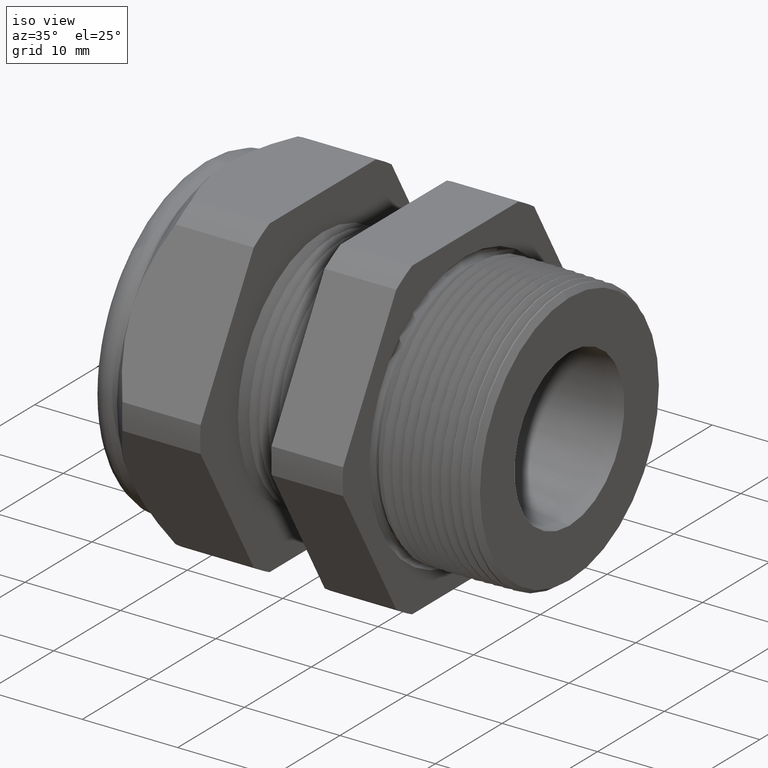
[diagram: clean part render]
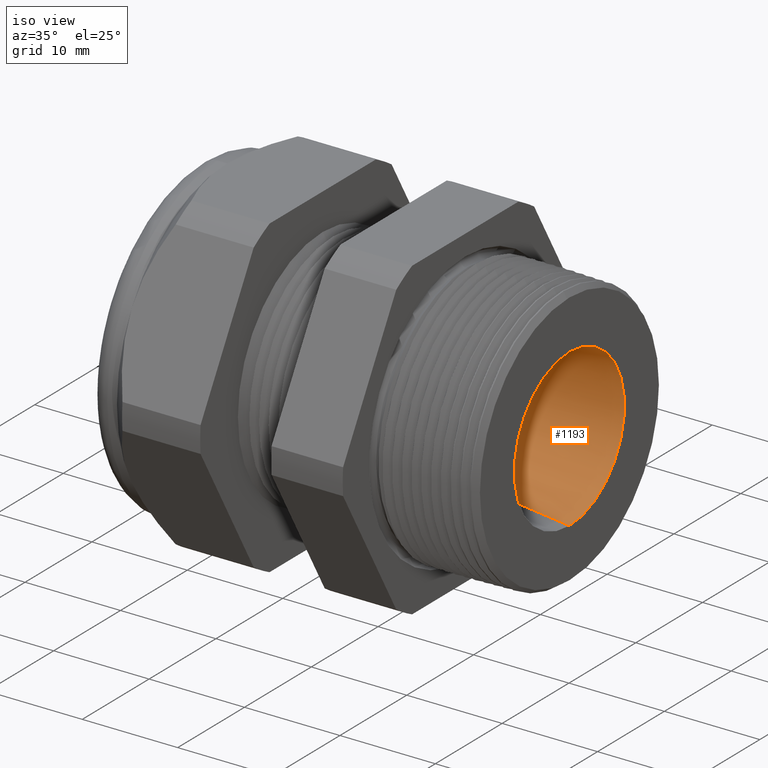
[diagram: same view with one face highlighted and labeled with its STEP entity id]
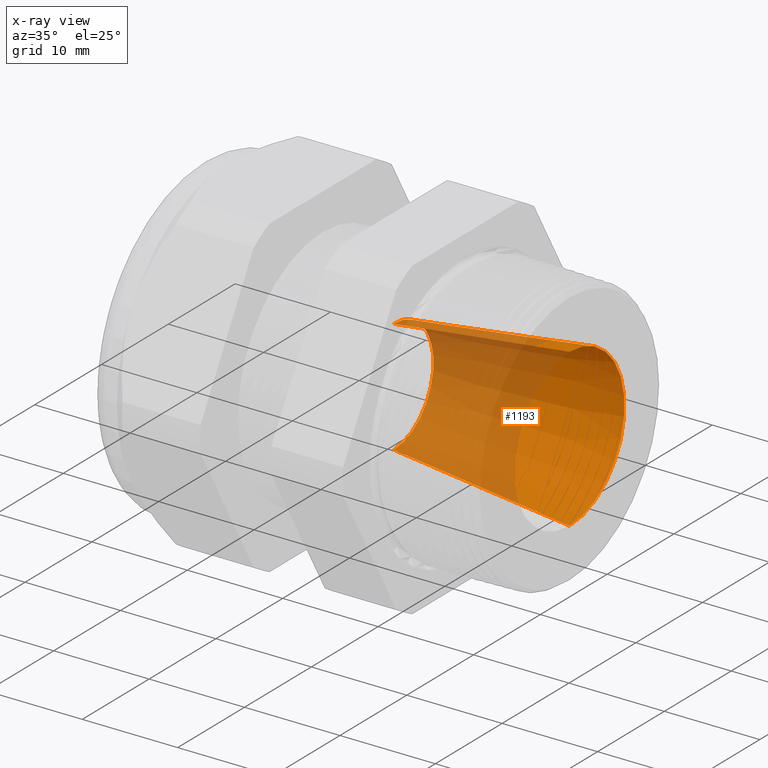
[diagram: x-ray of the same camera — body ghosted, the highlighted face saturated]
A machine part, iso view. The second image highlights one B-rep face of the part: STEP entity #1193.
The next image is the same camera in x-ray: the body ghosted, the highlighted face saturated — about 53% of this face is hidden behind the body in this view.
In plain terms, the highlighted conical surface has half-angle 7 deg.
Its self-contained STEP definition (entity closure, byte-faithful):
#1069 = ORIENTED_EDGE ( 'NONE', *, *, #1615, .F. ) ;
#1082 = ORIENTED_EDGE ( 'NONE', *, *, #1558, .F. ) ;
#1124 = EDGE_LOOP ( 'NONE', ( #1082, #1069, #1616, #1924 ) ) ;
#1193 = ADVANCED_FACE ( 'NONE', ( #2403 ), #2400, .F. ) ;
#1529 = EDGE_CURVE ( 'NONE', #1631, #1546, #2554, .T. ) ;
#1546 = VERTEX_POINT ( 'NONE', #2585 ) ;
#1558 = EDGE_CURVE ( 'NONE', #1628, #1546, #2627, .T. ) ;
#1580 = EDGE_CURVE ( 'NONE', #1624, #1631, #2647, .T. ) ;
#1615 = EDGE_CURVE ( 'NONE', #1624, #1628, #2714, .T. ) ;
#1616 = ORIENTED_EDGE ( 'NONE', *, *, #1580, .T. ) ;
#1624 = VERTEX_POINT ( 'NONE', #2762 ) ;
#1628 = VERTEX_POINT ( 'NONE', #2756 ) ;
#1631 = VERTEX_POINT ( 'NONE', #2753 ) ;
#1924 = ORIENTED_EDGE ( 'NONE', *, *, #1529, .T. ) ;
#2397 = DIRECTION ( 'NONE',  ( 0.0000000000000000000, 0.0000000000000000000, -1.000000000000000000 ) ) ;
#2398 = DIRECTION ( 'NONE',  ( 1.000000000000000000, 0.0000000000000000000, 0.0000000000000000000 ) ) ;
#2399 = AXIS2_PLACEMENT_3D ( 'NONE', #2402, #2398, #2397 ) ;
#2400 = CONICAL_SURFACE ( 'NONE', #2399, 0.2349999999999999900, 0.1221730476395964700 ) ;
#2402 = CARTESIAN_POINT ( 'NONE',  ( -0.6052755905511809600, 0.0000000000000000000, 0.0000000000000000000 ) ) ;
#2403 = FACE_OUTER_BOUND ( 'NONE', #1124, .T. ) ;
#2551 = DIRECTION ( 'NONE',  ( 0.0000000000000000000, 0.0000000000000000000, -1.000000000000000000 ) ) ;
#2552 = DIRECTION ( 'NONE',  ( 1.000000000000000000, 0.0000000000000000000, 0.0000000000000000000 ) ) ;
#2553 = AXIS2_PLACEMENT_3D ( 'NONE', #2558, #2552, #2551 ) ;
#2554 = CIRCLE ( 'NONE', #2553, 0.3240526449194167100 ) ;
#2558 = CARTESIAN_POINT ( 'NONE',  ( 0.1199999999999999500, 0.0000000000000000000, 0.0000000000000000000 ) ) ;
#2585 = CARTESIAN_POINT ( 'NONE',  ( 0.1199999999999999500, 3.968500343557975000E-017, 0.3240526449194167100 ) ) ;
#2624 = DIRECTION ( 'NONE',  ( 0.9925461516413227600, 1.492469013152954000E-017, 0.1218693434051409100 ) ) ;
#2625 = VECTOR ( 'NONE', #2624, 39.37007874015748900 ) ;
#2626 = CARTESIAN_POINT ( 'NONE',  ( -0.6052755905511809600, 2.877919977996279800E-017, 0.2349999999999999900 ) ) ;
#2627 = LINE ( 'NONE', #2626, #2625 ) ;
#2644 = DIRECTION ( 'NONE',  ( 0.9925461516413227600, 0.0000000000000000000, -0.1218693434051409100 ) ) ;
#2645 = VECTOR ( 'NONE', #2644, 39.37007874015748900 ) ;
#2646 = CARTESIAN_POINT ( 'NONE',  ( -0.6052755905511809600, 0.0000000000000000000, -0.2349999999999999900 ) ) ;
#2647 = LINE ( 'NONE', #2646, #2645 ) ;
#2711 = DIRECTION ( 'NONE',  ( 0.0000000000000000000, 0.0000000000000000000, -1.000000000000000000 ) ) ;
#2712 = DIRECTION ( 'NONE',  ( 1.000000000000000000, 0.0000000000000000000, 0.0000000000000000000 ) ) ;
#2713 = AXIS2_PLACEMENT_3D ( 'NONE', #2720, #2712, #2711 ) ;
#2714 = CIRCLE ( 'NONE', #2713, 0.2349999999999999900 ) ;
#2720 = CARTESIAN_POINT ( 'NONE',  ( -0.6052755905511809600, 0.0000000000000000000, 0.0000000000000000000 ) ) ;
#2753 = CARTESIAN_POINT ( 'NONE',  ( 0.1199999999999999500, 0.0000000000000000000, -0.3240526449194167100 ) ) ;
#2756 = CARTESIAN_POINT ( 'NONE',  ( -0.6052755905511809600, 3.423210160777128000E-017, 0.2349999999999999900 ) ) ;
#2762 = CARTESIAN_POINT ( 'NONE',  ( -0.6052755905511809600, 0.0000000000000000000, -0.2349999999999999900 ) ) ;